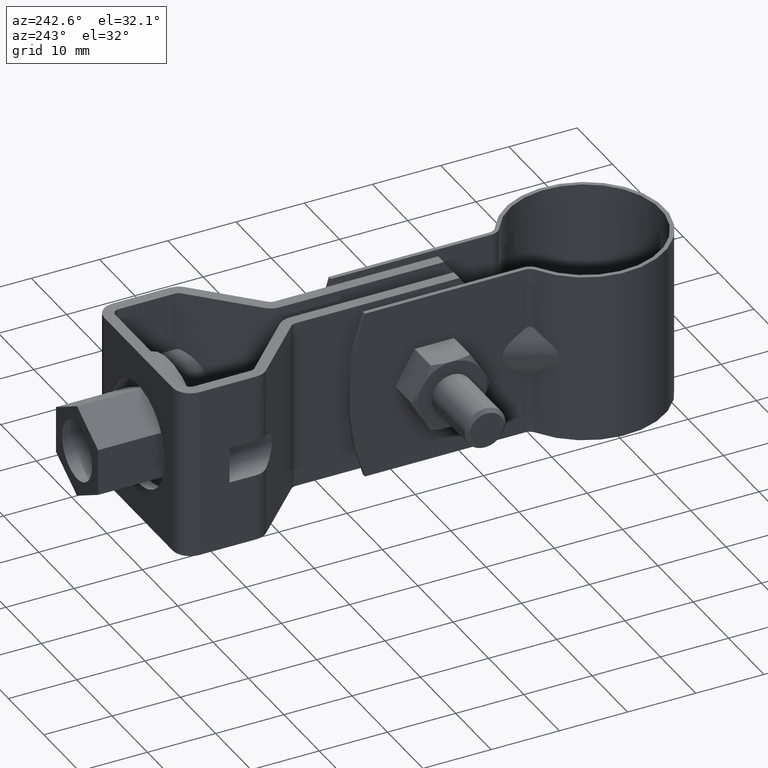
[diagram: clean part render]
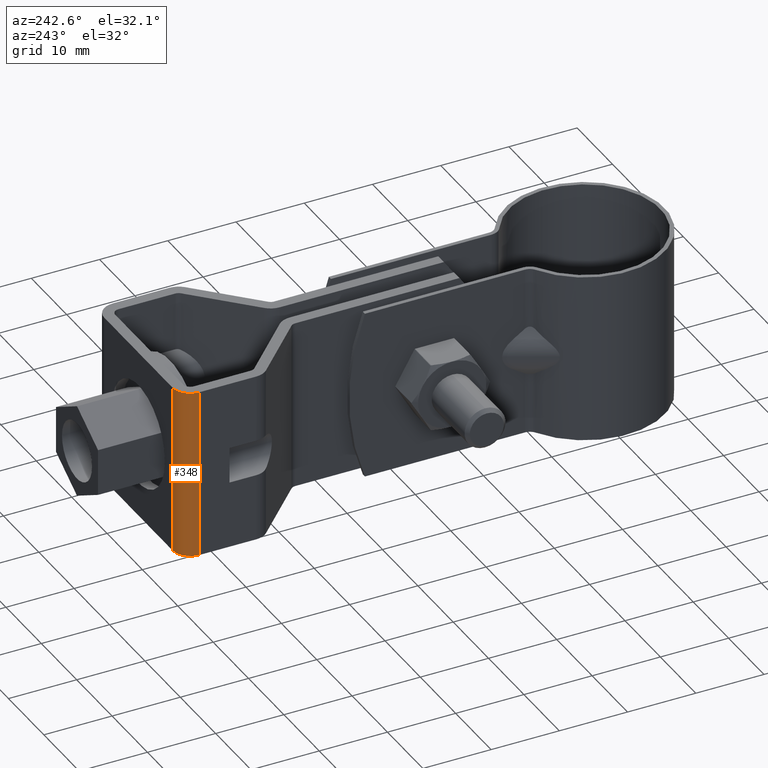
[diagram: same view with one face highlighted and labeled with its STEP entity id]
A machine part, auxiliary view. The second image highlights one B-rep face of the part: STEP entity #348.
In plain terms, the highlighted cylindrical surface (edge-blend (fillet) strip) has radius 2.6 mm, axis along (-0, 0, -1).
Its self-contained STEP definition (entity closure, byte-faithful):
#348 = ADVANCED_FACE( '', ( #567 ), #568, .T. );
#567 = FACE_OUTER_BOUND( '', #839, .T. );
#568 = CYLINDRICAL_SURFACE( '', #840, 2.60000000000000 );
#839 = EDGE_LOOP( '', ( #1602, #1603, #1604, #1605 ) );
#840 = AXIS2_PLACEMENT_3D( '', #1606, #1607, #1608 );
#1602 = ORIENTED_EDGE( '', *, *, #2166, .T. );
#1603 = ORIENTED_EDGE( '', *, *, #2167, .F. );
#1604 = ORIENTED_EDGE( '', *, *, #2114, .F. );
#1605 = ORIENTED_EDGE( '', *, *, #2154, .T. );
#1606 = CARTESIAN_POINT( '', ( -9.64999999655062, 62.8078582193108, -12.4999986199971 ) );
#1607 = DIRECTION( '', ( -1.87698704392248E-011, 9.98350074832307E-009, -1.00000000000000 ) );
#1608 = DIRECTION( '', ( 1.39876277799465E-011, 1.00000000000000, 9.98350074832280E-009 ) );
#2114 = EDGE_CURVE( '', #2558, #2560, #2561, .T. );
#2154 = EDGE_CURVE( '', #2558, #2628, #2630, .T. );
#2166 = EDGE_CURVE( '', #2628, #2647, #2648, .T. );
#2167 = EDGE_CURVE( '', #2560, #2647, #2649, .T. );
#2558 = VERTEX_POINT( '', #3324 );
#2560 = VERTEX_POINT( '', #3327 );
#2561 = CIRCLE( '', #3328, 2.59999999999999 );
#2628 = VERTEX_POINT( '', #3442 );
#2630 = LINE( '', #3445, #3446 );
#2647 = VERTEX_POINT( '', #3472 );
#2648 = CIRCLE( '', #3473, 2.59999999999999 );
#2649 = LINE( '', #3474, #3475 );
#3324 = CARTESIAN_POINT( '', ( -12.2499999965506, 62.8078582193472, -12.4999986199482 ) );
#3327 = CARTESIAN_POINT( '', ( -9.64999999651425, 65.4078582193108, -12.4999985940400 ) );
#3328 = AXIS2_PLACEMENT_3D( '', #3999, #4000, #4001 );
#3442 = CARTESIAN_POINT( '', ( -12.2499999960814, 62.8078579697597, 12.5000013800518 ) );
#3445 = CARTESIAN_POINT( '', ( -12.2499999965506, 62.8078582193472, -12.4999986199482 ) );
#3446 = VECTOR( '', #4063, 1000.00000000000 );
#3472 = CARTESIAN_POINT( '', ( -9.64999999604501, 65.4078579697233, 12.5000014059600 ) );
#3473 = AXIS2_PLACEMENT_3D( '', #4079, #4080, #4081 );
#3474 = CARTESIAN_POINT( '', ( -9.64999999651425, 65.4078582193108, -12.4999985940400 ) );
#3475 = VECTOR( '', #4082, 1000.00000000000 );
#3999 = CARTESIAN_POINT( '', ( -9.64999999655062, 62.8078582193108, -12.4999986199971 ) );
#4000 = DIRECTION( '', ( -1.87698704392248E-011, 9.98350074832307E-009, -1.00000000000000 ) );
#4001 = DIRECTION( '', ( -1.00000000000000, 1.39876275925575E-011, 1.87698705788703E-011 ) );
#4063 = DIRECTION( '', ( 1.87698704392248E-011, -9.98350074832307E-009, 1.00000000000000 ) );
#4079 = CARTESIAN_POINT( '', ( -9.64999999608137, 62.8078579697233, 12.5000013800029 ) );
#4080 = DIRECTION( '', ( -1.87698704392248E-011, 9.98350074832307E-009, -1.00000000000000 ) );
#4081 = DIRECTION( '', ( -1.00000000000000, 1.39876275925575E-011, 1.87698705788703E-011 ) );
#4082 = DIRECTION( '', ( 1.87698704392248E-011, -9.98350074832307E-009, 1.00000000000000 ) );